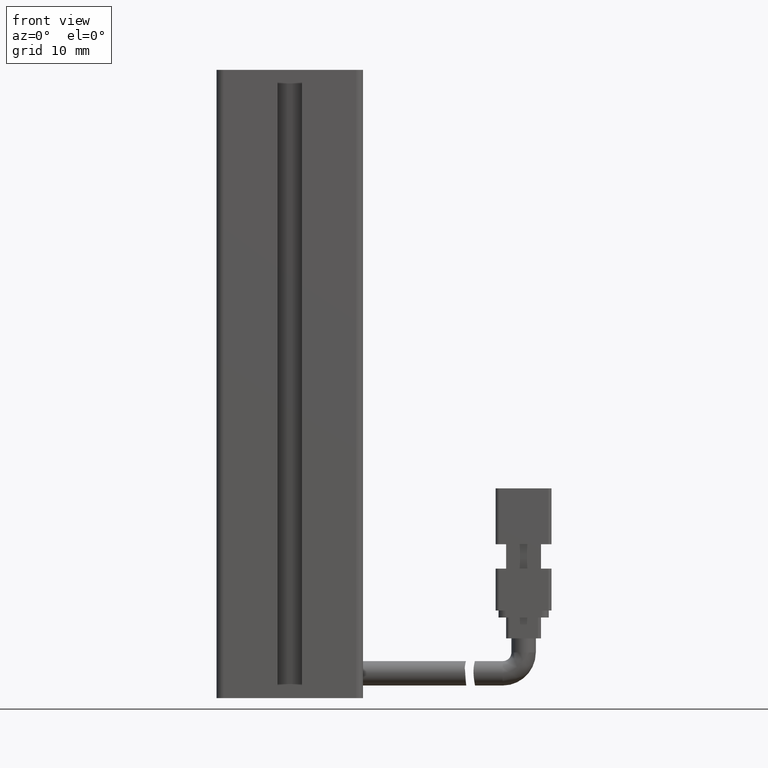
[diagram: clean part render]
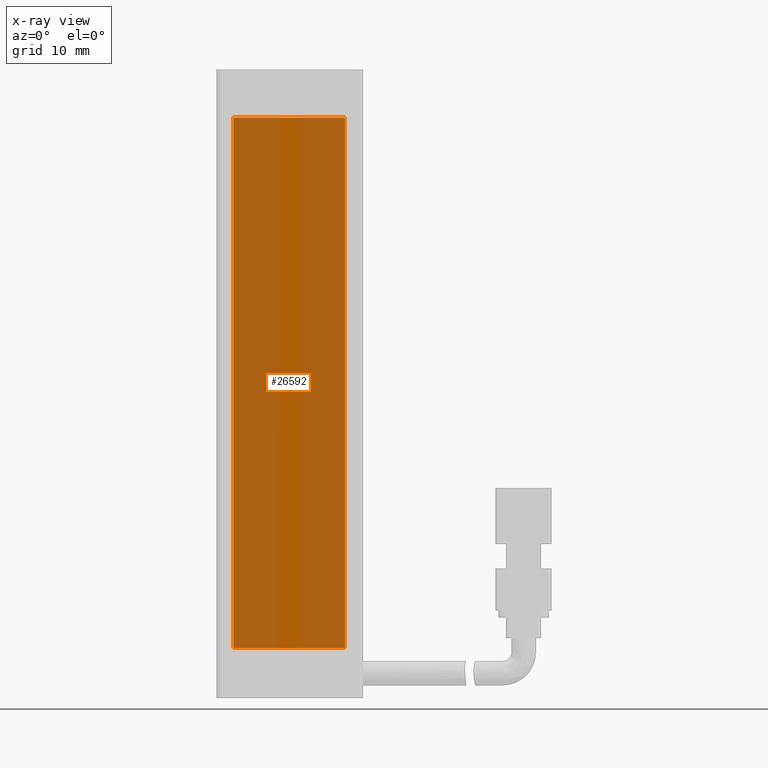
[diagram: x-ray — body ghosted, one internal face saturated and labeled with its STEP entity id]
A machine part, front view, then the same camera in x-ray: the body is ghosted and one INTERNAL B-rep face — a face not visible from any outside direction — is saturated and labeled: STEP entity #26592.
In plain terms, the highlighted planar face has unit normal (0, 1, 0).
Its self-contained STEP definition (entity closure, byte-faithful):
#47 = CARTESIAN_POINT ( 'NONE',  ( 48.82537974683540900, 23.49073232304836600, -152.8499999999999900 ) ) ;
#486 = VECTOR ( 'NONE', #26520, 1000.000000000000000 ) ;
#1028 = DIRECTION ( 'NONE',  ( -1.000000000000000000, 0.0000000000000000000, 0.0000000000000000000 ) ) ;
#1080 = EDGE_LOOP ( 'NONE', ( #1340, #18782, #4099, #20171 ) ) ;
#1340 = ORIENTED_EDGE ( 'NONE', *, *, #24383, .F. ) ;
#2314 = FACE_OUTER_BOUND ( 'NONE', #1080, .T. ) ;
#4099 = ORIENTED_EDGE ( 'NONE', *, *, #13118, .F. ) ;
#6978 = VECTOR ( 'NONE', #1028, 1000.000000000000000 ) ;
#9356 = DIRECTION ( 'NONE',  ( 0.0000000000000000000, 1.000000000000000000, 0.0000000000000000000 ) ) ;
#10447 = AXIS2_PLACEMENT_3D ( 'NONE', #21447, #9356, #31639 ) ;
#11461 = CARTESIAN_POINT ( 'NONE',  ( 48.82537974683540900, 23.49073232304836600, -114.8499999999999500 ) ) ;
#13118 = EDGE_CURVE ( 'NONE', #14702, #16997, #20279, .T. ) ;
#13482 = VECTOR ( 'NONE', #14313, 1000.000000000000000 ) ;
#13654 = CARTESIAN_POINT ( 'NONE',  ( 32.82537974683540900, 23.49073232304836600, -76.84999999999998000 ) ) ;
#14178 = EDGE_CURVE ( 'NONE', #31034, #14702, #31142, .T. ) ;
#14313 = DIRECTION ( 'NONE',  ( 0.0000000000000000000, -0.0000000000000000000, 1.000000000000000000 ) ) ;
#14702 = VERTEX_POINT ( 'NONE', #31676 ) ;
#15387 = CARTESIAN_POINT ( 'NONE',  ( 40.82537974683540900, 23.49073232304836600, -152.8499999999999900 ) ) ;
#15852 = PLANE ( 'NONE',  #10447 ) ;
#16703 = EDGE_CURVE ( 'NONE', #16997, #19052, #25209, .T. ) ;
#16997 = VERTEX_POINT ( 'NONE', #47 ) ;
#17372 = CARTESIAN_POINT ( 'NONE',  ( 32.82537974683540900, 23.49073232304836600, -152.8499999999999900 ) ) ;
#18782 = ORIENTED_EDGE ( 'NONE', *, *, #16703, .F. ) ;
#19052 = VERTEX_POINT ( 'NONE', #17372 ) ;
#19168 = DIRECTION ( 'NONE',  ( 1.000000000000000000, -0.0000000000000000000, -0.0000000000000000000 ) ) ;
#19182 = CARTESIAN_POINT ( 'NONE',  ( 32.82537974683540900, 23.49073232304836600, -114.8499999999999500 ) ) ;
#20171 = ORIENTED_EDGE ( 'NONE', *, *, #14178, .F. ) ;
#20279 = LINE ( 'NONE', #11461, #486 ) ;
#21447 = CARTESIAN_POINT ( 'NONE',  ( 40.82537974683540900, 23.49073232304836600, -114.8499999999999500 ) ) ;
#22025 = LINE ( 'NONE', #19182, #13482 ) ;
#24383 = EDGE_CURVE ( 'NONE', #19052, #31034, #22025, .T. ) ;
#25209 = LINE ( 'NONE', #15387, #6978 ) ;
#25659 = VECTOR ( 'NONE', #19168, 1000.000000000000000 ) ;
#26520 = DIRECTION ( 'NONE',  ( -0.0000000000000000000, 0.0000000000000000000, -1.000000000000000000 ) ) ;
#26592 = ADVANCED_FACE ( 'NONE', ( #2314 ), #15852, .F. ) ;
#29166 = CARTESIAN_POINT ( 'NONE',  ( 40.82537974683540900, 23.49073232304836600, -76.84999999999998000 ) ) ;
#31034 = VERTEX_POINT ( 'NONE', #13654 ) ;
#31142 = LINE ( 'NONE', #29166, #25659 ) ;
#31639 = DIRECTION ( 'NONE',  ( -0.0000000000000000000, 0.0000000000000000000, -1.000000000000000000 ) ) ;
#31676 = CARTESIAN_POINT ( 'NONE',  ( 48.82537974683540900, 23.49073232304836600, -76.84999999999998000 ) ) ;